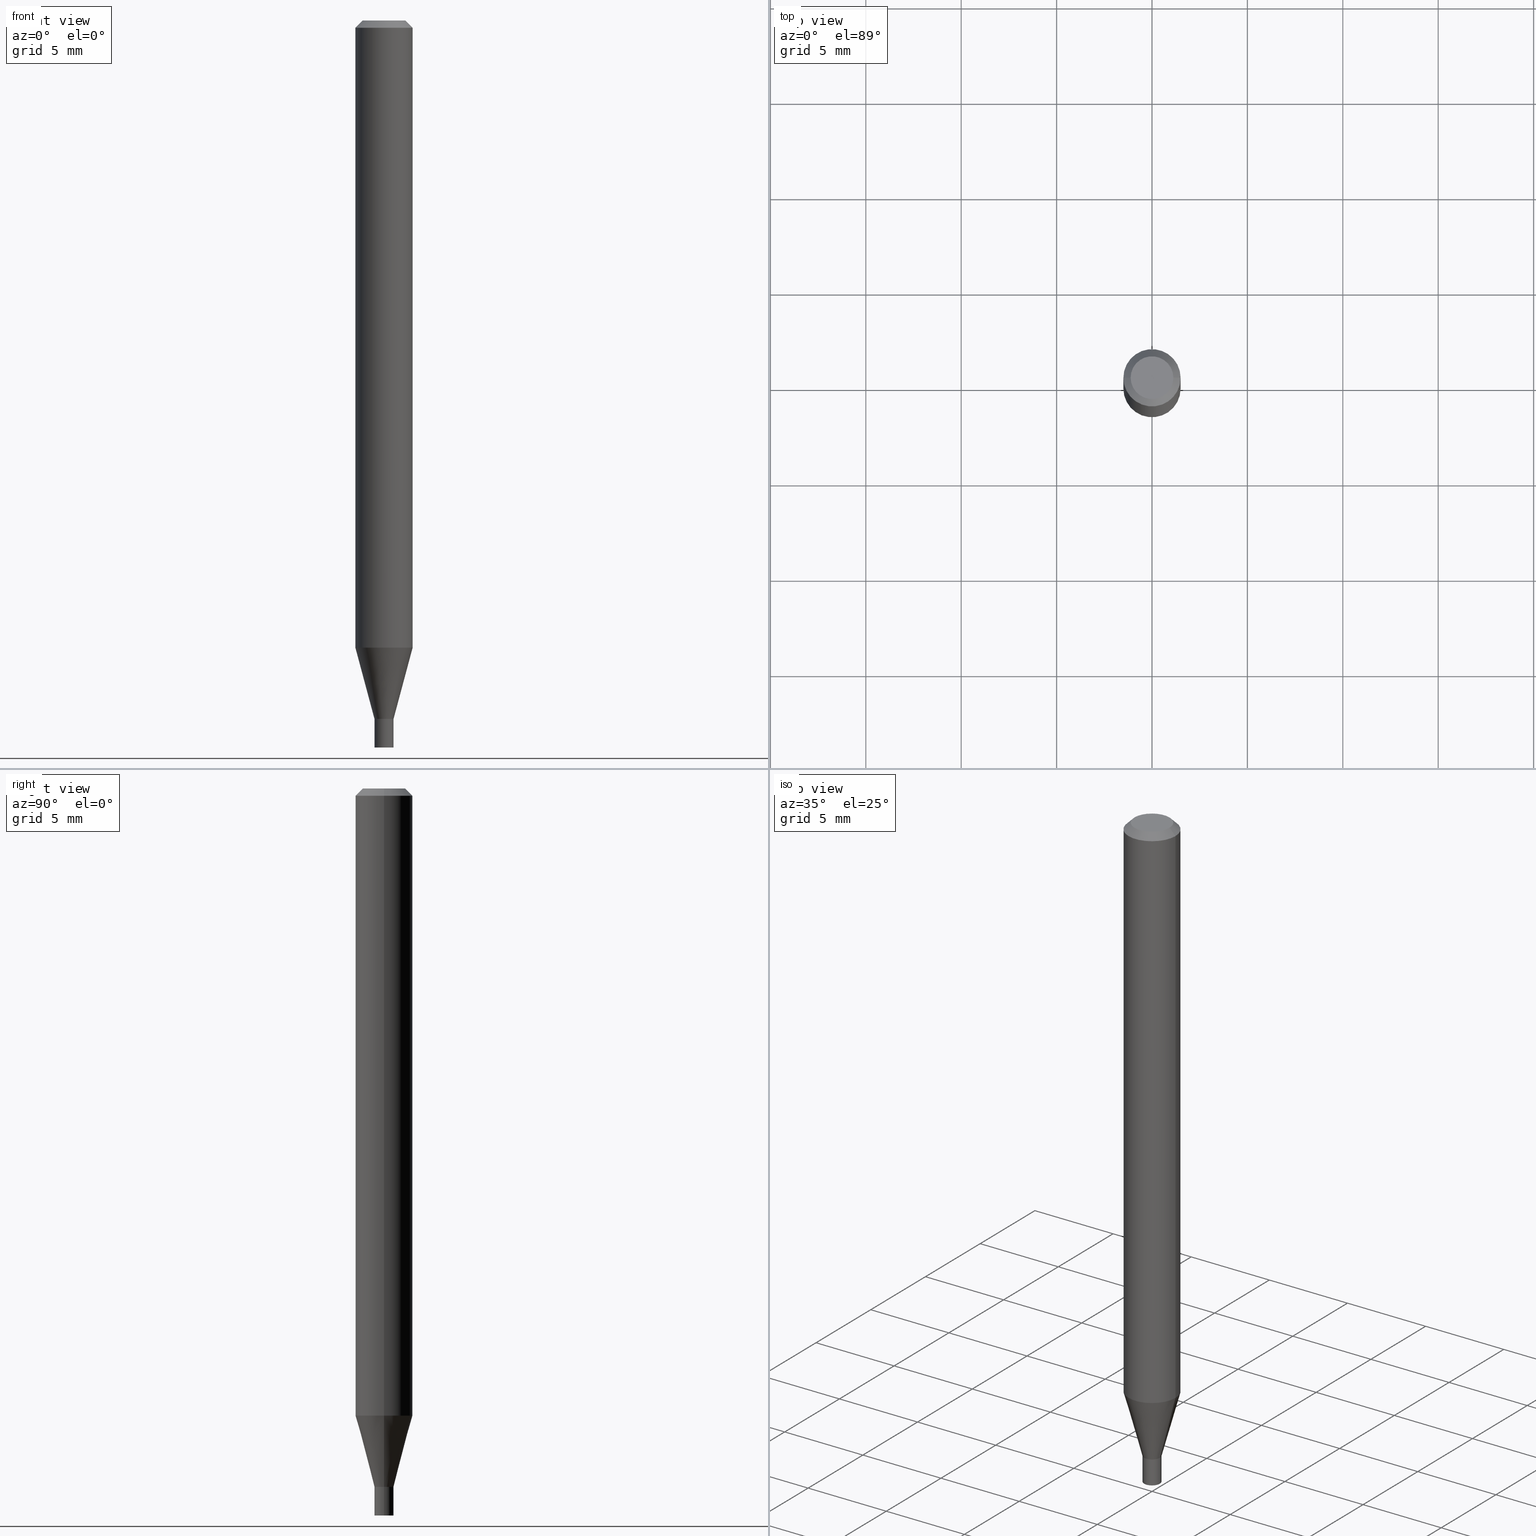
[diagram: canonical four-view strip — front | top / right | iso, engineering-drawing reading convention]
A machine part, canonical four-view strip (front | top / right | iso — engineering-drawing reading convention). The complete STEP part file that produces these views, byte-faithful:
ISO-10303-21;
HEADER;
FILE_DESCRIPTION (( 'STEP AP203' ),
    '1' );
FILE_NAME ('05121.STEP',
    '2024-03-14T18:00:40',
    ( '' ),
    ( '' ),
    'SwSTEP 2.0',
    'SolidWorks 2023',
    '' );
FILE_SCHEMA (( 'CONFIG_CONTROL_DESIGN' ));
ENDSEC;

DATA;
#1 = FACE_OUTER_BOUND ( 'NONE', #382, .T. ) ;
#2 = EDGE_CURVE ( 'NONE', #422, #237, #458, .T. ) ;
#3 = CARTESIAN_POINT ( 'NONE',  ( 0.000000000000000000, 0.000000000000000000, 0.000000000000000000 ) ) ;
#4 = AXIS2_PLACEMENT_3D ( 'NONE', #107, #227, #297 ) ;
#5 = LINE ( 'NONE', #403, #286 ) ;
#6 = DIRECTION ( 'NONE',  ( -2.445468806185136597E-29, 3.491481338843145583E-15, 1.000000000000000000 ) ) ;
#7 = CALENDAR_DATE ( 2024, 14, 3 ) ;
#8 = CARTESIAN_POINT ( 'NONE',  ( -0.05904999999999999832, 4.195754854663391478E-16, -2.904631170795521892E-30 ) ) ;
#9 = DIRECTION ( 'NONE',  ( -2.445468806185136597E-29, 3.491481338843145583E-15, 1.000000000000000000 ) ) ;
#10 = ADVANCED_FACE ( 'NONE', ( #50 ), #347, .T. ) ;
#11 = EDGE_CURVE ( 'NONE', #266, #326, #153, .T. ) ;
#12 = CARTESIAN_POINT ( 'NONE',  ( 3.668203209277705088E-31, -5.237222008264718399E-17, -0.01499999999999999944 ) ) ;
#13 = AXIS2_PLACEMENT_3D ( 'NONE', #110, #395, #439 ) ;
#14 = CIRCLE ( 'NONE', #325, 0.05904999999999999832 ) ;
#15 = CARTESIAN_POINT ( 'NONE',  ( 3.523676002832163563E-29, -5.030875461139089355E-15, -1.440900000000000292 ) ) ;
#16 = PERSON ( 'UNSPECIFIED', 'UNSPECIFIED', 'UNSPECIFIED', ('UNSPECIFIED'), ('UNSPECIFIED'), ('UNSPECIFIED') ) ;
#17 = ADVANCED_FACE ( 'NONE', ( #362 ), #428, .T. ) ;
#18 = ORIENTED_EDGE ( 'NONE', *, *, #335, .F. ) ;
#19 = CLOSED_SHELL ( 'NONE', ( #40, #294, #17, #125 ) ) ;
#20 = AXIS2_PLACEMENT_3D ( 'NONE', #131, #413, #100 ) ;
#21 = DIRECTION ( 'NONE',  ( -2.445468806185136877E-29, 3.491481338843145188E-15, 1.000000000000000000 ) ) ;
#22 = DIRECTION ( 'NONE',  ( 2.445468806185136597E-29, -3.491481338843145583E-15, -1.000000000000000000 ) ) ;
#23 = ADVANCED_FACE ( 'NONE', ( #282 ), #223, .T. ) ;
#24 = ORIENTED_EDGE ( 'NONE', *, *, #283, .T. ) ;
#25 = CARTESIAN_POINT ( 'NONE',  ( -0.01969999999999999876, 1.399769189447397278E-16, -9.690302127802162501E-31 ) ) ;
#26 = EDGE_LOOP ( 'NONE', ( #162, #457 ) ) ;
#27 = AXIS2_PLACEMENT_3D ( 'NONE', #436, #46, #213 ) ;
#28 = FACE_OUTER_BOUND ( 'NONE', #26, .T. ) ;
#29 = EDGE_LOOP ( 'NONE', ( #308, #205 ) ) ;
#30 = EDGE_CURVE ( 'NONE', #193, #344, #278, .T. ) ;
#31 = EDGE_LOOP ( 'NONE', ( #271, #138 ) ) ;
#32 = APPROVAL_DATE_TIME ( #343, #464 ) ;
#33 = ADVANCED_FACE ( 'NONE', ( #1 ), #206, .T. ) ;
#34 = EDGE_LOOP ( 'NONE', ( #191, #453, #267, #105 ) ) ;
#35 = AXIS2_PLACEMENT_3D ( 'NONE', #12, #239, #187 ) ;
#36 = COORDINATED_UNIVERSAL_TIME_OFFSET ( 5, 0, .BEHIND. ) ;
#37 = ORIENTED_EDGE ( 'NONE', *, *, #202, .F. ) ;
#38 = EDGE_CURVE ( 'NONE', #266, #193, #415, .T. ) ;
#39 = FACE_OUTER_BOUND ( 'NONE', #397, .T. ) ;
#40 = ADVANCED_FACE ( 'NONE', ( #39 ), #463, .T. ) ;
#41 = APPLICATION_PROTOCOL_DEFINITION ( 'international standard', 'config_control_design', 1994, #59 ) ;
#42 = PLANE ( 'NONE',  #318 ) ;
#43 = DIRECTION ( 'NONE',  ( -2.445468806185136597E-29, 3.491481338843145583E-15, 1.000000000000000000 ) ) ;
#44 = PERSON_AND_ORGANIZATION ( #16, #183 ) ;
#45 = AXIS2_PLACEMENT_3D ( 'NONE', #262, #154, #409 ) ;
#46 = DIRECTION ( 'NONE',  ( -2.445468806185136597E-29, 3.491481338843145583E-15, 1.000000000000000000 ) ) ;
#47 = APPROVAL_PERSON_ORGANIZATION ( #44, #464, #143 ) ;
#48 = CARTESIAN_POINT ( 'NONE',  ( 3.523676002832163563E-29, -5.030875461139089355E-15, -1.440900000000000292 ) ) ;
#49 = CARTESIAN_POINT ( 'NONE',  ( 0.05904999999999999832, -4.647161662000212105E-16, -0.01499999999999999944 ) ) ;
#50 = FACE_OUTER_BOUND ( 'NONE', #57, .T. ) ;
#51 = ADVANCED_BREP_SHAPE_REPRESENTATION ( '05121', ( #272, #270, #98 ), #443 ) ;
#52 = CIRCLE ( 'NONE', #27, 0.01969999999999999876 ) ;
#53 = EDGE_LOOP ( 'NONE', ( #333, #425, #384, #204 ) ) ;
#54 = LOCAL_TIME ( 14, 0, 40.00000000000000000, #438 ) ;
#55 = EDGE_CURVE ( 'NONE', #103, #127, #431, .T. ) ;
#56 = DIRECTION ( 'NONE',  ( 1.000000000000000000, -6.982962677686266711E-15, 0.000000000000000000 ) ) ;
#57 = EDGE_LOOP ( 'NONE', ( #430, #303, #18, #165 ) ) ;
#58 = CARTESIAN_POINT ( 'NONE',  ( 3.668203209277705088E-31, -5.237222008264718399E-17, -0.01499999999999999944 ) ) ;
#59 = APPLICATION_CONTEXT ( 'configuration controlled 3d designs of mechanical parts and assemblies' ) ;
#60 = ORIENTED_EDGE ( 'NONE', *, *, #412, .F. ) ;
#61 =( CONVERSION_BASED_UNIT ( 'INCH', #334 ) LENGTH_UNIT ( ) NAMED_UNIT ( #408 ) );
#62 = ADVANCED_FACE ( 'NONE', ( #87 ), #368, .T. ) ;
#63 = VERTEX_POINT ( 'NONE', #71 ) ;
#64 = AXIS2_PLACEMENT_3D ( 'NONE', #287, #252, #352 ) ;
#65 = DIRECTION ( 'NONE',  ( -2.445468806185136877E-29, 3.491481338843145188E-15, 1.000000000000000000 ) ) ;
#66 = ORIENTED_EDGE ( 'NONE', *, *, #255, .T. ) ;
#67 = LINE ( 'NONE', #381, #188 ) ;
#68 = ORIENTED_EDGE ( 'NONE', *, *, #449, .T. ) ;
#69 = CC_DESIGN_PERSON_AND_ORGANIZATION_ASSIGNMENT ( #80, #215, ( #147 ) ) ;
#70 = DIRECTION ( 'NONE',  ( -2.445468806185136597E-29, 3.491481338843145583E-15, 1.000000000000000000 ) ) ;
#71 = CARTESIAN_POINT ( 'NONE',  ( -0.05904999999999999832, -1.865675515508531289E-15, -0.01499999999999999944 ) ) ;
#72 = AXIS2_PLACEMENT_3D ( 'NONE', #185, #250, #310 ) ;
#73 = EDGE_CURVE ( 'NONE', #237, #344, #76, .T. ) ;
#74 = CIRCLE ( 'NONE', #330, 0.01919999999999999485 ) ;
#75 = PERSON_AND_ORGANIZATION_ROLE ( 'creator' ) ;
#76 = LINE ( 'NONE', #359, #159 ) ;
#77 = DATE_AND_TIME ( #289, #54 ) ;
#78 = EDGE_CURVE ( 'NONE', #127, #63, #356, .T. ) ;
#79 = CARTESIAN_POINT ( 'NONE',  ( 0.000000000000000000, 0.000000000000000000, 0.000000000000000000 ) ) ;
#80 = PERSON_AND_ORGANIZATION ( #16, #183 ) ;
#81 = LINE ( 'NONE', #8, #254 ) ;
#82 = DIRECTION ( 'NONE',  ( -2.445468806185136597E-29, 3.491481338843145583E-15, 1.000000000000000000 ) ) ;
#83 = AXIS2_PLACEMENT_3D ( 'NONE', #323, #285, #219 ) ;
#84 = AXIS2_PLACEMENT_3D ( 'NONE', #58, #331, #56 ) ;
#85 = DIRECTION ( 'NONE',  ( 2.438088387897960049E-29, -3.491481338843145188E-15, -1.000000000000000000 ) ) ;
#86 = CC_DESIGN_APPROVAL ( #464, ( #198 ) ) ;
#87 = FACE_OUTER_BOUND ( 'NONE', #420, .T. ) ;
#88 = CC_DESIGN_DATE_AND_TIME_ASSIGNMENT ( #357, #351, ( #198 ) ) ;
#89 = CARTESIAN_POINT ( 'NONE',  ( 3.164543748503307071E-29, -4.518129781867094090E-15, -1.294043800722163962 ) ) ;
#90 = DIRECTION ( 'NONE',  ( -2.445468806185136597E-29, 3.491481338843145583E-15, 1.000000000000000000 ) ) ;
#91 = CIRCLE ( 'NONE', #459, 0.05904999999999999832 ) ;
#92 = ORIENTED_EDGE ( 'NONE', *, *, #55, .T. ) ;
#93 = CARTESIAN_POINT ( 'NONE',  ( 0.01969999999999978366, -1.375643647504179571E-16, 9.606068248317888120E-31 ) ) ;
#94 = DIRECTION ( 'NONE',  ( -2.445468806185136877E-29, 3.491481338843145188E-15, 1.000000000000000000 ) ) ;
#95 = ORIENTED_EDGE ( 'NONE', *, *, #412, .T. ) ;
#96 = EDGE_CURVE ( 'NONE', #140, #133, #207, .T. ) ;
#97 = CARTESIAN_POINT ( 'NONE',  ( 0.01969999999999964835, -5.168439825889506203E-15, -1.440900000000000292 ) ) ;
#98 = AXIS2_PLACEMENT_3D ( 'NONE', #3, #148, #251 ) ;
#99 = ORIENTED_EDGE ( 'NONE', *, *, #404, .F. ) ;
#100 = DIRECTION ( 'NONE',  ( 1.000000000000000000, -6.982962677686255667E-15, 0.000000000000000000 ) ) ;
#101 = ORIENTED_EDGE ( 'NONE', *, *, #73, .T. ) ;
#102 = LINE ( 'NONE', #97, #441 ) ;
#103 = VERTEX_POINT ( 'NONE', #288 ) ;
#104 = PLANE ( 'NONE',  #123 ) ;
#105 = ORIENTED_EDGE ( 'NONE', *, *, #268, .F. ) ;
#106 = CIRCLE ( 'NONE', #274, 0.01969999999999991896 ) ;
#107 = CARTESIAN_POINT ( 'NONE',  ( 0.000000000000000000, 0.000000000000000000, 0.000000000000000000 ) ) ;
#108 = VERTEX_POINT ( 'NONE', #406 ) ;
#109 = PERSON_AND_ORGANIZATION ( #16, #183 ) ;
#110 = CARTESIAN_POINT ( 'NONE',  ( 3.523676002832163563E-29, -5.030875461139089355E-15, -1.440900000000000292 ) ) ;
#111 = ADVANCED_FACE ( 'NONE', ( #230 ), #258, .F. ) ;
#112 = APPROVAL_DATE_TIME ( #120, #178 ) ;
#113 = DIRECTION ( 'NONE',  ( -1.000000000000000000, 6.982962677686265922E-15, -4.876176775795935793E-29 ) ) ;
#114 = CARTESIAN_POINT ( 'NONE',  ( -0.01919999999999999485, -4.894451255873150156E-15, -1.440900000000000292 ) ) ;
#115 = CARTESIAN_POINT ( 'NONE',  ( -0.01969999999999999876, -4.994071815757163668E-15, -1.500000000000000222 ) ) ;
#116 = DIRECTION ( 'NONE',  ( -0.7071067811865656694, 7.493145998870420424E-15, 0.7071067811865294761 ) ) ;
#117 = ADVANCED_FACE ( 'NONE', ( #121 ), #427, .T. ) ;
#118 = FACE_OUTER_BOUND ( 'NONE', #31, .T. ) ;
#119 = CARTESIAN_POINT ( 'NONE',  ( 0.01919999999999999485, -5.164948344550665562E-15, -1.440900000000000292 ) ) ;
#120 = DATE_AND_TIME ( #462, #261 ) ;
#121 = FACE_OUTER_BOUND ( 'NONE', #340, .T. ) ;
#122 = CARTESIAN_POINT ( 'NONE',  ( -8.641182519006283330E-45, 1.233731848647590289E-30, 3.533548453838708869E-16 ) ) ;
#123 = AXIS2_PLACEMENT_3D ( 'NONE', #302, #452, #167 ) ;
#124 = EDGE_CURVE ( 'NONE', #133, #140, #52, .T. ) ;
#125 = ADVANCED_FACE ( 'NONE', ( #118 ), #42, .F. ) ;
#126 = DIRECTION ( 'NONE',  ( -2.445468806185136877E-29, 3.491481338843145188E-15, 1.000000000000000000 ) ) ;
#127 = VERTEX_POINT ( 'NONE', #176 ) ;
#128 = CARTESIAN_POINT ( 'NONE',  ( -8.641182519006283330E-45, 1.233731848647590289E-30, 3.533548453838708869E-16 ) ) ;
#129 = AXIS2_PLACEMENT_3D ( 'NONE', #387, #85, #399 ) ;
#130 = EDGE_CURVE ( 'NONE', #63, #226, #14, .T. ) ;
#131 = CARTESIAN_POINT ( 'NONE',  ( 3.523676002832163563E-29, -5.030875461139089355E-15, -1.440900000000000292 ) ) ;
#132 = CARTESIAN_POINT ( 'NONE',  ( 0.01969999999999999876, -5.168439825889509358E-15, -1.440900000000000292 ) ) ;
#133 = VERTEX_POINT ( 'NONE', #115 ) ;
#134 = ORIENTED_EDGE ( 'NONE', *, *, #244, .T. ) ;
#135 = DIRECTION ( 'NONE',  ( 1.000000000000000000, -6.982962677686267499E-15, 4.876176775795935793E-29 ) ) ;
#136 = ORIENTED_EDGE ( 'NONE', *, *, #355, .F. ) ;
#137 = FACE_OUTER_BOUND ( 'NONE', #158, .T. ) ;
#138 = ORIENTED_EDGE ( 'NONE', *, *, #268, .T. ) ;
#139 = APPROVAL_STATUS ( 'not_yet_approved' ) ;
#140 = VERTEX_POINT ( 'NONE', #179 ) ;
#141 = CARTESIAN_POINT ( 'NONE',  ( 0.05904999999999999832, -4.574846268510561447E-16, -0.01499999999999999944 ) ) ;
#142 = VERTEX_POINT ( 'NONE', #241 ) ;
#143 = APPROVAL_ROLE ( '' ) ;
#144 = CARTESIAN_POINT ( 'NONE',  ( -0.01919999999999999485, -4.891802028699038955E-15, -1.440900000000000292 ) ) ;
#145 = ORIENTED_EDGE ( 'NONE', *, *, #73, .F. ) ;
#146 = ADVANCED_FACE ( 'NONE', ( #313 ), #322, .F. ) ;
#147 = PRODUCT_DEFINITION ( 'UNKNOWN', '', #296, #378 ) ;
#148 = DIRECTION ( 'NONE',  ( 0.000000000000000000, 0.000000000000000000, 1.000000000000000000 ) ) ;
#149 = DIRECTION ( 'NONE',  ( -2.445468806185136597E-29, 3.491481338843145583E-15, 1.000000000000000000 ) ) ;
#150 = DIRECTION ( 'NONE',  ( 1.000000000000000000, -6.982962677686278543E-15, 0.000000000000000000 ) ) ;
#151 = PERSON_AND_ORGANIZATION ( #16, #183 ) ;
#152 = DIRECTION ( 'NONE',  ( -2.445468806185136877E-29, 3.491481338843145188E-15, 1.000000000000000000 ) ) ;
#153 = LINE ( 'NONE', #119, #379 ) ;
#154 = DIRECTION ( 'NONE',  ( -2.445468806185136597E-29, 3.491481338843145583E-15, 1.000000000000000000 ) ) ;
#155 = AXIS2_PLACEMENT_3D ( 'NONE', #361, #149, #466 ) ;
#156 = EDGE_CURVE ( 'NONE', #142, #108, #91, .T. ) ;
#157 = DIRECTION ( 'NONE',  ( -2.445468806185136597E-29, 3.491481338843145583E-15, 1.000000000000000000 ) ) ;
#158 = EDGE_LOOP ( 'NONE', ( #222, #259, #301, #305 ) ) ;
#159 = VECTOR ( 'NONE', #214, 39.37007874015748143 ) ;
#160 = DIRECTION ( 'NONE',  ( -2.445468806185136597E-29, 3.491481338843145583E-15, 1.000000000000000000 ) ) ;
#161 = DIRECTION ( 'NONE',  ( -1.000000000000000000, 6.982962677686266711E-15, 0.000000000000000000 ) ) ;
#162 = ORIENTED_EDGE ( 'NONE', *, *, #96, .F. ) ;
#163 = CYLINDRICAL_SURFACE ( 'NONE', #392, 0.01969999999999978366 ) ;
#164 = AXIS2_PLACEMENT_3D ( 'NONE', #269, #232, #236 ) ;
#165 = ORIENTED_EDGE ( 'NONE', *, *, #11, .F. ) ;
#166 = APPROVAL_PERSON_ORGANIZATION ( #212, #178, #435 ) ;
#167 = DIRECTION ( 'NONE',  ( 1.000000000000000000, -6.982962677686265922E-15, 4.876176775795935793E-29 ) ) ;
#168 = ORIENTED_EDGE ( 'NONE', *, *, #311, .F. ) ;
#169 = ORIENTED_EDGE ( 'NONE', *, *, #257, .T. ) ;
#170 = EDGE_CURVE ( 'NONE', #450, #175, #265, .T. ) ;
#171 = ORIENTED_EDGE ( 'NONE', *, *, #375, .F. ) ;
#172 = CONICAL_SURFACE ( 'NONE', #20, 0.01969999999999964835, 0.2617993877991500740 ) ;
#173 = CC_DESIGN_APPROVAL ( #178, ( #147 ) ) ;
#174 = PERSON_AND_ORGANIZATION ( #16, #183 ) ;
#175 = VERTEX_POINT ( 'NONE', #218 ) ;
#176 = CARTESIAN_POINT ( 'NONE',  ( -0.04404999999999999888, 3.337856159934040055E-16, 3.533548453838686682E-16 ) ) ;
#177 = DIRECTION ( 'NONE',  ( -2.445468806185136597E-29, 3.491481338843145583E-15, 1.000000000000000000 ) ) ;
#178 = APPROVAL ( #426, 'UNSPECIFIED' ) ;
#179 = CARTESIAN_POINT ( 'NONE',  ( 0.01969999999999999876, -5.374786373015138180E-15, -1.500000000000000222 ) ) ;
#180 = CARTESIAN_POINT ( 'NONE',  ( -0.05904999999999999832, 3.599717260347268549E-16, -0.01499999999999999944 ) ) ;
#181 = PRODUCT_DEFINITION_SHAPE ( 'NONE', 'NONE',  #147 ) ;
#182 = VECTOR ( 'NONE', #94, 39.37007874015748143 ) ;
#183 = ORGANIZATION ( 'UNSPECIFIED', 'UNSPECIFIED', '' ) ;
#184 = APPROVAL_STATUS ( 'not_yet_approved' ) ;
#185 = CARTESIAN_POINT ( 'NONE',  ( 0.000000000000000000, 0.000000000000000000, 0.000000000000000000 ) ) ;
#186 = LINE ( 'NONE', #141, #234 ) ;
#187 = DIRECTION ( 'NONE',  ( -1.000000000000000000, 6.982962677686266711E-15, 0.000000000000000000 ) ) ;
#188 = VECTOR ( 'NONE', #21, 39.37007874015748143 ) ;
#189 = DIRECTION ( 'NONE',  ( -2.438088387897960049E-29, 3.491481338843145188E-15, 1.000000000000000000 ) ) ;
#190 = VECTOR ( 'NONE', #65, 39.37007874015748143 ) ;
#191 = ORIENTED_EDGE ( 'NONE', *, *, #440, .F. ) ;
#192 = DIRECTION ( 'NONE',  ( 0.2588190451025213501, 1.565188264969621968E-15, 0.9659258262890682012 ) ) ;
#193 = VERTEX_POINT ( 'NONE', #144 ) ;
#194 = CARTESIAN_POINT ( 'NONE',  ( 0.01969999999999964835, -5.168439825889506203E-15, -1.440900000000000292 ) ) ;
#195 = ORIENTED_EDGE ( 'NONE', *, *, #2, .T. ) ;
#196 = DIRECTION ( 'NONE',  ( -2.445468806185136597E-29, 3.491481338843145583E-15, 1.000000000000000000 ) ) ;
#197 = CONICAL_SURFACE ( 'NONE', #432, 0.05904999999999999832, 0.7853981633974366217 ) ;
#198 = SECURITY_CLASSIFICATION ( '', '', #309 ) ;
#199 = ORIENTED_EDGE ( 'NONE', *, *, #335, .T. ) ;
#200 = CARTESIAN_POINT ( 'NONE',  ( -0.01969999999999964835, -4.890898542194352413E-15, -1.440900000000000292 ) ) ;
#201 = ORIENTED_EDGE ( 'NONE', *, *, #202, .T. ) ;
#202 = EDGE_CURVE ( 'NONE', #108, #63, #81, .T. ) ;
#203 = COORDINATED_UNIVERSAL_TIME_OFFSET ( 5, 0, .BEHIND. ) ;
#204 = ORIENTED_EDGE ( 'NONE', *, *, #130, .T. ) ;
#205 = ORIENTED_EDGE ( 'NONE', *, *, #209, .F. ) ;
#206 = CONICAL_SURFACE ( 'NONE', #13, 0.01969999999999964835, 0.2617993877991500740 ) ;
#207 = CIRCLE ( 'NONE', #451, 0.01969999999999999876 ) ;
#208 = CALENDAR_DATE ( 2024, 14, 3 ) ;
#209 = EDGE_CURVE ( 'NONE', #193, #266, #74, .T. ) ;
#210 = DIRECTION ( 'NONE',  ( 2.438088387897960049E-29, -3.491481338843145188E-15, -1.000000000000000000 ) ) ;
#211 = ORIENTED_EDGE ( 'NONE', *, *, #311, .T. ) ;
#212 = PERSON_AND_ORGANIZATION ( #16, #183 ) ;
#213 = DIRECTION ( 'NONE',  ( 1.000000000000000000, -6.982962677686278543E-15, 0.000000000000000000 ) ) ;
#214 = DIRECTION ( 'NONE',  ( -2.445468806185136877E-29, 3.491481338843145188E-15, 1.000000000000000000 ) ) ;
#215 = PERSON_AND_ORGANIZATION_ROLE ( 'creator' ) ;
#216 = DIRECTION ( 'NONE',  ( 1.000000000000000000, -6.982962677686253300E-15, 0.000000000000000000 ) ) ;
#217 = CIRCLE ( 'NONE', #423, 0.04404999999999999888 ) ;
#218 = CARTESIAN_POINT ( 'NONE',  ( -0.01969999999999999876, -4.994071815757163668E-15, -1.440900000000000292 ) ) ;
#219 = DIRECTION ( 'NONE',  ( 1.000000000000000000, -6.982962677686253300E-15, 0.000000000000000000 ) ) ;
#220 = DIRECTION ( 'NONE',  ( 1.000000000000000000, -6.982962677686265922E-15, 4.819687581474398999E-29 ) ) ;
#221 = LOCAL_TIME ( 14, 0, 40.00000000000000000, #238 ) ;
#222 = ORIENTED_EDGE ( 'NONE', *, *, #55, .F. ) ;
#223 = CONICAL_SURFACE ( 'NONE', #35, 0.05904999999999999832, 0.7853981633974366217 ) ;
#224 = DIRECTION ( 'NONE',  ( 1.000000000000000000, -6.982962677686258033E-15, 0.000000000000000000 ) ) ;
#225 = AXIS2_PLACEMENT_3D ( 'NONE', #421, #229, #456 ) ;
#226 = VERTEX_POINT ( 'NONE', #49 ) ;
#227 = DIRECTION ( 'NONE',  ( -2.445468806185136597E-29, 3.491481338843145583E-15, 1.000000000000000000 ) ) ;
#228 = ORIENTED_EDGE ( 'NONE', *, *, #255, .F. ) ;
#229 = DIRECTION ( 'NONE',  ( -2.445468806185136597E-29, 3.491481338843145583E-15, 1.000000000000000000 ) ) ;
#230 = FACE_OUTER_BOUND ( 'NONE', #29, .T. ) ;
#231 = EDGE_LOOP ( 'NONE', ( #60, #101, #461, #275 ) ) ;
#232 = DIRECTION ( 'NONE',  ( -2.445468806185136597E-29, 3.491481338843145583E-15, 1.000000000000000000 ) ) ;
#233 = EDGE_CURVE ( 'NONE', #103, #226, #186, .T. ) ;
#234 = VECTOR ( 'NONE', #316, 39.37007874015748143 ) ;
#235 = ORIENTED_EDGE ( 'NONE', *, *, #11, .T. ) ;
#236 = DIRECTION ( 'NONE',  ( 1.000000000000000000, -6.982962677686267499E-15, 4.876176775795935793E-29 ) ) ;
#237 = VERTEX_POINT ( 'NONE', #277 ) ;
#238 = COORDINATED_UNIVERSAL_TIME_OFFSET ( 5, 0, .BEHIND. ) ;
#239 = DIRECTION ( 'NONE',  ( 2.445468806185136597E-29, -3.491481338843145583E-15, -1.000000000000000000 ) ) ;
#240 = DATE_AND_TIME ( #312, #307 ) ;
#241 = CARTESIAN_POINT ( 'NONE',  ( 0.05905000000000000526, -4.930473727984467433E-15, -1.294043800722163962 ) ) ;
#242 = DIRECTION ( 'NONE',  ( 1.000000000000000000, -6.982962677686255667E-15, 0.000000000000000000 ) ) ;
#243 = VECTOR ( 'NONE', #341, 39.37007874015747433 ) ;
#244 = EDGE_CURVE ( 'NONE', #142, #226, #5, .T. ) ;
#245 =( NAMED_UNIT ( * ) SI_UNIT ( $, .STERADIAN. ) SOLID_ANGLE_UNIT ( ) );
#246 = CARTESIAN_POINT ( 'NONE',  ( 3.668203209277705088E-31, -5.237222008264718399E-17, -0.01499999999999999944 ) ) ;
#247 = ORIENTED_EDGE ( 'NONE', *, *, #2, .F. ) ;
#248 = APPLICATION_PROTOCOL_DEFINITION ( 'international standard', 'config_control_design', 1994, #385 ) ;
#249 = DIRECTION ( 'NONE',  ( -2.445468806185136597E-29, 3.491481338843145583E-15, 1.000000000000000000 ) ) ;
#250 = DIRECTION ( 'NONE',  ( -2.445468806185136597E-29, 3.491481338843145583E-15, 1.000000000000000000 ) ) ;
#251 = DIRECTION ( 'NONE',  ( 1.000000000000000000, 0.000000000000000000, 0.000000000000000000 ) ) ;
#252 = DIRECTION ( 'NONE',  ( -2.445468806185136597E-29, 3.491481338843145583E-15, 1.000000000000000000 ) ) ;
#253 = DIRECTION ( 'NONE',  ( -2.445468806185136597E-29, 3.491481338843145583E-15, 1.000000000000000000 ) ) ;
#254 = VECTOR ( 'NONE', #152, 39.37007874015748143 ) ;
#255 = EDGE_CURVE ( 'NONE', #108, #142, #260, .T. ) ;
#256 = FACE_OUTER_BOUND ( 'NONE', #377, .T. ) ;
#257 = EDGE_CURVE ( 'NONE', #127, #103, #217, .T. ) ;
#258 = PLANE ( 'NONE',  #339 ) ;
#259 = ORIENTED_EDGE ( 'NONE', *, *, #233, .T. ) ;
#260 = CIRCLE ( 'NONE', #306, 0.05904999999999999832 ) ;
#261 = LOCAL_TIME ( 14, 0, 40.00000000000000000, #36 ) ;
#262 = CARTESIAN_POINT ( 'NONE',  ( 3.523676002832163563E-29, -5.030875461139089355E-15, -1.440900000000000292 ) ) ;
#263 = CARTESIAN_POINT ( 'NONE',  ( 3.523676002832163563E-29, -5.030875461139089355E-15, -1.440900000000000292 ) ) ;
#264 = AXIS2_PLACEMENT_3D ( 'NONE', #353, #9, #242 ) ;
#265 = CIRCLE ( 'NONE', #155, 0.01969999999999999876 ) ;
#266 = VERTEX_POINT ( 'NONE', #410 ) ;
#267 = ORIENTED_EDGE ( 'NONE', *, *, #375, .T. ) ;
#268 = EDGE_CURVE ( 'NONE', #175, #450, #380, .T. ) ;
#269 = CARTESIAN_POINT ( 'NONE',  ( 0.000000000000000000, 0.000000000000000000, 0.000000000000000000 ) ) ;
#270 = MANIFOLD_SOLID_BREP ( 'Body-Move/Copy2[2]', #300 ) ;
#271 = ORIENTED_EDGE ( 'NONE', *, *, #170, .T. ) ;
#272 = MANIFOLD_SOLID_BREP ( 'Body-Move/Copy2[1]', #19 ) ;
#273 = LINE ( 'NONE', #200, #243 ) ;
#274 = AXIS2_PLACEMENT_3D ( 'NONE', #383, #446, #224 ) ;
#275 = ORIENTED_EDGE ( 'NONE', *, *, #283, .F. ) ;
#276 = APPROVAL_DATE_TIME ( #240, #373 ) ;
#277 = CARTESIAN_POINT ( 'NONE',  ( -0.01969999999999964835, -4.494726419297553505E-15, -1.440900000000000292 ) ) ;
#278 = LINE ( 'NONE', #114, #293 ) ;
#279 = CC_DESIGN_PERSON_AND_ORGANIZATION_ASSIGNMENT ( #109, #396, ( #198 ) ) ;
#280 = PERSON_AND_ORGANIZATION_ROLE ( 'design_owner' ) ;
#281 = CARTESIAN_POINT ( 'NONE',  ( 1.375643647504546638E-16, 0.01969999999999496459, -1.440900000000000292 ) ) ;
#282 = FACE_OUTER_BOUND ( 'NONE', #53, .T. ) ;
#283 = EDGE_CURVE ( 'NONE', #422, #326, #292, .T. ) ;
#284 = DIRECTION ( 'NONE',  ( -2.445468806185136597E-29, 3.491481338843145583E-15, 1.000000000000000000 ) ) ;
#285 = DIRECTION ( 'NONE',  ( -2.445468806185136597E-29, 3.491481338843145583E-15, 1.000000000000000000 ) ) ;
#286 = VECTOR ( 'NONE', #126, 39.37007874015748143 ) ;
#287 = CARTESIAN_POINT ( 'NONE',  ( 0.000000000000000000, 0.000000000000000000, 0.000000000000000000 ) ) ;
#288 = CARTESIAN_POINT ( 'NONE',  ( 0.04404999999999999888, -3.798447818264454163E-16, 3.533548453838733521E-16 ) ) ;
#289 = CALENDAR_DATE ( 2024, 14, 3 ) ;
#290 = ADVANCED_FACE ( 'NONE', ( #256 ), #172, .T. ) ;
#291 = DIRECTION ( 'NONE',  ( 1.000000000000000000, -6.982962677686253300E-15, 0.000000000000000000 ) ) ;
#292 = LINE ( 'NONE', #93, #182 ) ;
#293 = VECTOR ( 'NONE', #116, 39.37007874015748143 ) ;
#294 = ADVANCED_FACE ( 'NONE', ( #28 ), #104, .F. ) ;
#295 = PRODUCT_RELATED_PRODUCT_CATEGORY ( 'detail', '', ( #345 ) ) ;
#296 = PRODUCT_DEFINITION_FORMATION_WITH_SPECIFIED_SOURCE ( 'ANY', '', #345, .NOT_KNOWN. ) ;
#297 = DIRECTION ( 'NONE',  ( 1.000000000000000000, -6.982962677686266711E-15, 4.876176775795936353E-29 ) ) ;
#298 = LINE ( 'NONE', #25, #190 ) ;
#299 = EDGE_LOOP ( 'NONE', ( #37, #66, #134, #367 ) ) ;
#300 = CLOSED_SHELL ( 'NONE', ( #329, #10, #445, #117, #33, #290, #327, #23, #146, #111, #62, #346 ) ) ;
#301 = ORIENTED_EDGE ( 'NONE', *, *, #404, .T. ) ;
#302 = CARTESIAN_POINT ( 'NONE',  ( 3.576687321579069994E-29, -5.368277968210015545E-15, -1.500000000000000222 ) ) ;
#303 = ORIENTED_EDGE ( 'NONE', *, *, #30, .T. ) ;
#304 = CARTESIAN_POINT ( 'NONE',  ( -0.01969999999999991896, -4.889152801524928543E-15, -1.440400000000000347 ) ) ;
#305 = ORIENTED_EDGE ( 'NONE', *, *, #78, .F. ) ;
#306 = AXIS2_PLACEMENT_3D ( 'NONE', #89, #157, #405 ) ;
#307 = LOCAL_TIME ( 14, 0, 40.00000000000000000, #203 ) ;
#308 = ORIENTED_EDGE ( 'NONE', *, *, #38, .F. ) ;
#309 = SECURITY_CLASSIFICATION_LEVEL ( 'unclassified' ) ;
#310 = DIRECTION ( 'NONE',  ( 1.000000000000000000, -6.982962677686265922E-15, 4.876176775795935232E-29 ) ) ;
#311 = EDGE_CURVE ( 'NONE', #422, #142, #102, .T. ) ;
#312 = CALENDAR_DATE ( 2024, 14, 3 ) ;
#313 = FACE_OUTER_BOUND ( 'NONE', #336, .T. ) ;
#314 = DIRECTION ( 'NONE',  ( 1.000000000000000000, -6.982962677686265922E-15, 4.876176775795935232E-29 ) ) ;
#315 =( NAMED_UNIT ( * ) PLANE_ANGLE_UNIT ( ) SI_UNIT ( $, .RADIAN. ) );
#316 = DIRECTION ( 'NONE',  ( 0.7071067811865392461, -7.319954787623227646E-15, -0.7071067811865557884 ) ) ;
#317 = DIRECTION ( 'NONE',  ( -0.7071067811865392461, 2.468850131082170286E-15, -0.7071067811865557884 ) ) ;
#318 = AXIS2_PLACEMENT_3D ( 'NONE', #281, #210, #113 ) ;
#319 = COORDINATED_UNIVERSAL_TIME_OFFSET ( 5, 0, .BEHIND. ) ;
#320 = DIRECTION ( 'NONE',  ( 1.000000000000000000, -6.982962677686266711E-15, 0.000000000000000000 ) ) ;
#321 = ORIENTED_EDGE ( 'NONE', *, *, #156, .F. ) ;
#322 = PLANE ( 'NONE',  #129 ) ;
#323 = CARTESIAN_POINT ( 'NONE',  ( 3.523676002832163563E-29, -5.030875461139089355E-15, -1.440900000000000292 ) ) ;
#324 = AXIS2_PLACEMENT_3D ( 'NONE', #48, #43, #388 ) ;
#325 = AXIS2_PLACEMENT_3D ( 'NONE', #246, #249, #320 ) ;
#326 = VERTEX_POINT ( 'NONE', #424 ) ;
#327 = ADVANCED_FACE ( 'NONE', ( #417 ), #419, .T. ) ;
#328 = ORIENTED_EDGE ( 'NONE', *, *, #156, .T. ) ;
#329 = ADVANCED_FACE ( 'NONE', ( #338 ), #163, .F. ) ;
#330 = AXIS2_PLACEMENT_3D ( 'NONE', #391, #284, #291 ) ;
#331 = DIRECTION ( 'NONE',  ( -2.445468806185136597E-29, 3.491481338843145583E-15, 1.000000000000000000 ) ) ;
#332 = CARTESIAN_POINT ( 'NONE',  ( 3.668203209277705088E-31, -5.237222008264718399E-17, -0.01499999999999999944 ) ) ;
#333 = ORIENTED_EDGE ( 'NONE', *, *, #233, .F. ) ;
#334 = LENGTH_MEASURE_WITH_UNIT ( LENGTH_MEASURE( 0.02539999999999999897 ), #372 );
#335 = EDGE_CURVE ( 'NONE', #326, #344, #349, .T. ) ;
#336 = EDGE_LOOP ( 'NONE', ( #169, #92 ) ) ;
#337 = VECTOR ( 'NONE', #317, 39.37007874015748143 ) ;
#338 = FACE_OUTER_BOUND ( 'NONE', #231, .T. ) ;
#339 = AXIS2_PLACEMENT_3D ( 'NONE', #15, #189, #358 ) ;
#340 = EDGE_LOOP ( 'NONE', ( #328, #201, #99, #411 ) ) ;
#341 = DIRECTION ( 'NONE',  ( -0.2588190451025213501, 5.211531920934551042E-15, 0.9659258262890682012 ) ) ;
#342 = ORIENTED_EDGE ( 'NONE', *, *, #449, .F. ) ;
#343 = DATE_AND_TIME ( #7, #442 ) ;
#344 = VERTEX_POINT ( 'NONE', #304 ) ;
#345 = PRODUCT ( '05121', '05121', '', ( #429 ) ) ;
#346 = ADVANCED_FACE ( 'NONE', ( #376 ), #448, .F. ) ;
#347 = CONICAL_SURFACE ( 'NONE', #83, 0.01919999999999999485, 0.7853981633974739252 ) ;
#348 = DIRECTION ( 'NONE',  ( 1.000000000000000000, -6.982962677686273021E-15, 0.000000000000000000 ) ) ;
#349 = CIRCLE ( 'NONE', #225, 0.01969999999999991896 ) ;
#350 = DIRECTION ( 'NONE',  ( 0.7071067811865656694, -2.468850131082446387E-15, 0.7071067811865294761 ) ) ;
#351 = DATE_TIME_ROLE ( 'classification_date' ) ;
#352 = DIRECTION ( 'NONE',  ( 1.000000000000000000, -6.982962677686266711E-15, 4.876176775795936353E-29 ) ) ;
#353 = CARTESIAN_POINT ( 'NONE',  ( 3.523676002832163563E-29, -5.030875461139089355E-15, -1.440900000000000292 ) ) ;
#354 = DATE_TIME_ROLE ( 'creation_date' ) ;
#355 = EDGE_CURVE ( 'NONE', #344, #326, #106, .T. ) ;
#356 = LINE ( 'NONE', #180, #337 ) ;
#357 = DATE_AND_TIME ( #208, #221 ) ;
#358 = DIRECTION ( 'NONE',  ( 1.000000000000000000, -6.982962677686265922E-15, 4.876176775795935793E-29 ) ) ;
#359 = CARTESIAN_POINT ( 'NONE',  ( -0.01969999999999978366, 1.399769189447381994E-16, -9.690302127802057404E-31 ) ) ;
#360 = AXIS2_PLACEMENT_3D ( 'NONE', #400, #82, #216 ) ;
#361 = CARTESIAN_POINT ( 'NONE',  ( 3.523676002832163563E-29, -5.030875461139089355E-15, -1.440900000000000292 ) ) ;
#362 = FACE_OUTER_BOUND ( 'NONE', #34, .T. ) ;
#363 = CC_DESIGN_PERSON_AND_ORGANIZATION_ASSIGNMENT ( #398, #75, ( #296 ) ) ;
#364 = AXIS2_PLACEMENT_3D ( 'NONE', #79, #177, #314 ) ;
#365 = UNCERTAINTY_MEASURE_WITH_UNIT (LENGTH_MEASURE( 1.000000000000000082E-05 ), #61, 'distance_accuracy_value', 'NONE');
#366 = AXIS2_PLACEMENT_3D ( 'NONE', #263, #196, #370 ) ;
#367 = ORIENTED_EDGE ( 'NONE', *, *, #130, .F. ) ;
#368 = CONICAL_SURFACE ( 'NONE', #360, 0.01919999999999999485, 0.7853981633974739252 ) ;
#369 = CC_DESIGN_APPROVAL ( #373, ( #296 ) ) ;
#370 = DIRECTION ( 'NONE',  ( 1.000000000000000000, -6.982962677686255667E-15, 0.000000000000000000 ) ) ;
#371 = ORIENTED_EDGE ( 'NONE', *, *, #209, .T. ) ;
#372 =( LENGTH_UNIT ( ) NAMED_UNIT ( * ) SI_UNIT ( $, .METRE. ) );
#373 = APPROVAL ( #139, 'UNSPECIFIED' ) ;
#374 = ORIENTED_EDGE ( 'NONE', *, *, #30, .F. ) ;
#375 = EDGE_CURVE ( 'NONE', #140, #450, #67, .T. ) ;
#376 = FACE_OUTER_BOUND ( 'NONE', #455, .T. ) ;
#377 = EDGE_LOOP ( 'NONE', ( #342, #95, #211, #228 ) ) ;
#378 = DESIGN_CONTEXT ( 'detailed design', #59, 'design' ) ;
#379 = VECTOR ( 'NONE', #350, 39.37007874015748143 ) ;
#380 = CIRCLE ( 'NONE', #45, 0.01969999999999999876 ) ;
#381 = CARTESIAN_POINT ( 'NONE',  ( 0.01969999999999999876, -1.375643647504194363E-16, 9.606068248317991466E-31 ) ) ;
#382 = EDGE_LOOP ( 'NONE', ( #195, #68, #321, #168 ) ) ;
#383 = CARTESIAN_POINT ( 'NONE',  ( 3.522453268429071882E-29, -5.029129720469667852E-15, -1.440400000000000347 ) ) ;
#384 = ORIENTED_EDGE ( 'NONE', *, *, #78, .T. ) ;
#385 = APPLICATION_CONTEXT ( 'configuration controlled 3d designs of mechanical parts and assemblies' ) ;
#386 = SHAPE_DEFINITION_REPRESENTATION ( #181, #51 ) ;
#387 = CARTESIAN_POINT ( 'NONE',  ( 3.075995059520799729E-16, 0.04404999999999999888, 2.287766971589489619E-17 ) ) ;
#388 = DIRECTION ( 'NONE',  ( 1.000000000000000000, -6.982962677686253300E-15, 0.000000000000000000 ) ) ;
#389 = PERSON_AND_ORGANIZATION_ROLE ( 'design_supplier' ) ;
#390 = AXIS2_PLACEMENT_3D ( 'NONE', #122, #253, #393 ) ;
#391 = CARTESIAN_POINT ( 'NONE',  ( 3.523676002832163563E-29, -5.030875461139089355E-15, -1.440900000000000292 ) ) ;
#392 = AXIS2_PLACEMENT_3D ( 'NONE', #454, #160, #135 ) ;
#393 = DIRECTION ( 'NONE',  ( 1.000000000000000000, -6.982962677686265922E-15, 4.819687581474398999E-29 ) ) ;
#394 = CARTESIAN_POINT ( 'NONE',  ( 3.164543748503307071E-29, -4.518129781867094090E-15, -1.294043800722163962 ) ) ;
#395 = DIRECTION ( 'NONE',  ( -2.445468806185136597E-29, 3.491481338843145583E-15, 1.000000000000000000 ) ) ;
#396 = PERSON_AND_ORGANIZATION_ROLE ( 'classification_officer' ) ;
#397 = EDGE_LOOP ( 'NONE', ( #414, #418, #434, #171 ) ) ;
#398 = PERSON_AND_ORGANIZATION ( #16, #183 ) ;
#399 = DIRECTION ( 'NONE',  ( -1.000000000000000000, 6.982962677686265922E-15, -4.876176775795935793E-29 ) ) ;
#400 = CARTESIAN_POINT ( 'NONE',  ( 3.523676002832163563E-29, -5.030875461139089355E-15, -1.440900000000000292 ) ) ;
#401 = CIRCLE ( 'NONE', #366, 0.01969999999999964835 ) ;
#402 = CC_DESIGN_PERSON_AND_ORGANIZATION_ASSIGNMENT ( #151, #280, ( #345 ) ) ;
#403 = CARTESIAN_POINT ( 'NONE',  ( 0.05904999999999999832, -4.123439461173740327E-16, 2.879382386107500220E-30 ) ) ;
#404 = EDGE_CURVE ( 'NONE', #226, #63, #407, .T. ) ;
#405 = DIRECTION ( 'NONE',  ( 1.000000000000000000, -6.982962677686273021E-15, 0.000000000000000000 ) ) ;
#406 = CARTESIAN_POINT ( 'NONE',  ( -0.05905000000000000526, -4.098554296400754597E-15, -1.294043800722163962 ) ) ;
#407 = CIRCLE ( 'NONE', #84, 0.05904999999999999832 ) ;
#408 = DIMENSIONAL_EXPONENTS ( 1.000000000000000000, 0.000000000000000000, 0.000000000000000000, 0.000000000000000000, 0.000000000000000000, 0.000000000000000000, 0.000000000000000000 ) ;
#409 = DIRECTION ( 'NONE',  ( 1.000000000000000000, -6.982962677686278543E-15, 0.000000000000000000 ) ) ;
#410 = CARTESIAN_POINT ( 'NONE',  ( 0.01919999999999999485, -5.164948344550665562E-15, -1.440900000000000292 ) ) ;
#411 = ORIENTED_EDGE ( 'NONE', *, *, #244, .F. ) ;
#412 = EDGE_CURVE ( 'NONE', #237, #422, #401, .T. ) ;
#413 = DIRECTION ( 'NONE',  ( -2.445468806185136597E-29, 3.491481338843145583E-15, 1.000000000000000000 ) ) ;
#414 = ORIENTED_EDGE ( 'NONE', *, *, #96, .T. ) ;
#415 = CIRCLE ( 'NONE', #324, 0.01919999999999999485 ) ;
#416 = CC_DESIGN_PERSON_AND_ORGANIZATION_ASSIGNMENT ( #174, #389, ( #296 ) ) ;
#417 = FACE_OUTER_BOUND ( 'NONE', #299, .T. ) ;
#418 = ORIENTED_EDGE ( 'NONE', *, *, #440, .T. ) ;
#419 = CYLINDRICAL_SURFACE ( 'NONE', #4, 0.05904999999999999832 ) ;
#420 = EDGE_LOOP ( 'NONE', ( #374, #371, #235, #136 ) ) ;
#421 = CARTESIAN_POINT ( 'NONE',  ( 3.522453268429071882E-29, -5.029129720469667852E-15, -1.440400000000000347 ) ) ;
#422 = VERTEX_POINT ( 'NONE', #194 ) ;
#423 = AXIS2_PLACEMENT_3D ( 'NONE', #128, #90, #220 ) ;
#424 = CARTESIAN_POINT ( 'NONE',  ( 0.01969999999999991896, -5.166694085220087066E-15, -1.440400000000000347 ) ) ;
#425 = ORIENTED_EDGE ( 'NONE', *, *, #257, .F. ) ;
#426 = APPROVAL_STATUS ( 'not_yet_approved' ) ;
#427 = CYLINDRICAL_SURFACE ( 'NONE', #64, 0.05904999999999999832 ) ;
#428 = CYLINDRICAL_SURFACE ( 'NONE', #72, 0.01969999999999999876 ) ;
#429 = MECHANICAL_CONTEXT ( 'NONE', #385, 'mechanical' ) ;
#430 = ORIENTED_EDGE ( 'NONE', *, *, #38, .T. ) ;
#431 = CIRCLE ( 'NONE', #390, 0.04404999999999999888 ) ;
#432 = AXIS2_PLACEMENT_3D ( 'NONE', #332, #22, #161 ) ;
#433 = APPROVAL_PERSON_ORGANIZATION ( #460, #373, #465 ) ;
#434 = ORIENTED_EDGE ( 'NONE', *, *, #170, .F. ) ;
#435 = APPROVAL_ROLE ( '' ) ;
#436 = CARTESIAN_POINT ( 'NONE',  ( 3.668203209277704895E-29, -5.237222008264718177E-15, -1.500000000000000222 ) ) ;
#437 = CARTESIAN_POINT ( 'NONE',  ( 3.668203209277704895E-29, -5.237222008264718177E-15, -1.500000000000000222 ) ) ;
#438 = COORDINATED_UNIVERSAL_TIME_OFFSET ( 5, 0, .BEHIND. ) ;
#439 = DIRECTION ( 'NONE',  ( 1.000000000000000000, -6.982962677686255667E-15, 0.000000000000000000 ) ) ;
#440 = EDGE_CURVE ( 'NONE', #133, #175, #298, .T. ) ;
#441 = VECTOR ( 'NONE', #192, 39.37007874015747433 ) ;
#442 = LOCAL_TIME ( 14, 0, 40.00000000000000000, #319 ) ;
#443 =( GEOMETRIC_REPRESENTATION_CONTEXT ( 3 ) GLOBAL_UNCERTAINTY_ASSIGNED_CONTEXT ( ( #365 ) ) GLOBAL_UNIT_ASSIGNED_CONTEXT ( ( #61, #315, #245 ) ) REPRESENTATION_CONTEXT ( 'NONE', 'WORKASPACE' ) );
#444 = CC_DESIGN_SECURITY_CLASSIFICATION ( #198, ( #296 ) ) ;
#445 = ADVANCED_FACE ( 'NONE', ( #137 ), #197, .T. ) ;
#446 = DIRECTION ( 'NONE',  ( -2.445468806185136597E-29, 3.491481338843145583E-15, 1.000000000000000000 ) ) ;
#447 = CC_DESIGN_DATE_AND_TIME_ASSIGNMENT ( #77, #354, ( #147 ) ) ;
#448 = CYLINDRICAL_SURFACE ( 'NONE', #164, 0.01969999999999978366 ) ;
#449 = EDGE_CURVE ( 'NONE', #237, #108, #273, .T. ) ;
#450 = VERTEX_POINT ( 'NONE', #132 ) ;
#451 = AXIS2_PLACEMENT_3D ( 'NONE', #437, #6, #150 ) ;
#452 = DIRECTION ( 'NONE',  ( -2.438088387897960049E-29, 3.491481338843145188E-15, 1.000000000000000000 ) ) ;
#453 = ORIENTED_EDGE ( 'NONE', *, *, #124, .T. ) ;
#454 = CARTESIAN_POINT ( 'NONE',  ( 0.000000000000000000, 0.000000000000000000, 0.000000000000000000 ) ) ;
#455 = EDGE_LOOP ( 'NONE', ( #145, #247, #24, #199 ) ) ;
#456 = DIRECTION ( 'NONE',  ( 1.000000000000000000, -6.982962677686258033E-15, 0.000000000000000000 ) ) ;
#457 = ORIENTED_EDGE ( 'NONE', *, *, #124, .F. ) ;
#458 = CIRCLE ( 'NONE', #264, 0.01969999999999964835 ) ;
#459 = AXIS2_PLACEMENT_3D ( 'NONE', #394, #70, #348 ) ;
#460 = PERSON_AND_ORGANIZATION ( #16, #183 ) ;
#461 = ORIENTED_EDGE ( 'NONE', *, *, #355, .T. ) ;
#462 = CALENDAR_DATE ( 2024, 14, 3 ) ;
#463 = CYLINDRICAL_SURFACE ( 'NONE', #364, 0.01969999999999999876 ) ;
#464 = APPROVAL ( #184, 'UNSPECIFIED' ) ;
#465 = APPROVAL_ROLE ( '' ) ;
#466 = DIRECTION ( 'NONE',  ( 1.000000000000000000, -6.982962677686278543E-15, 0.000000000000000000 ) ) ;
ENDSEC;
END-ISO-10303-21;
